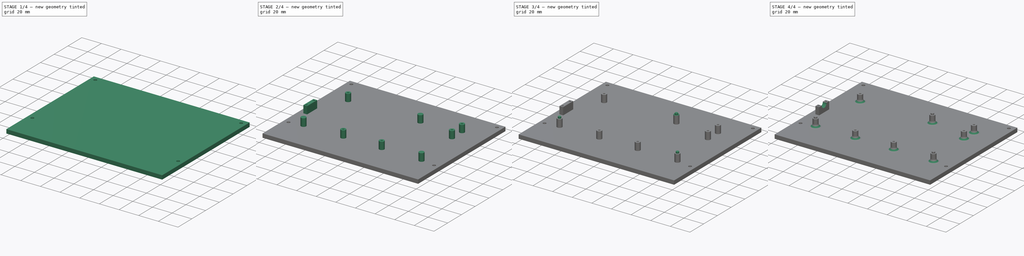
[diagram: build sequence overview — one tinted view per stage of 4, left to right]
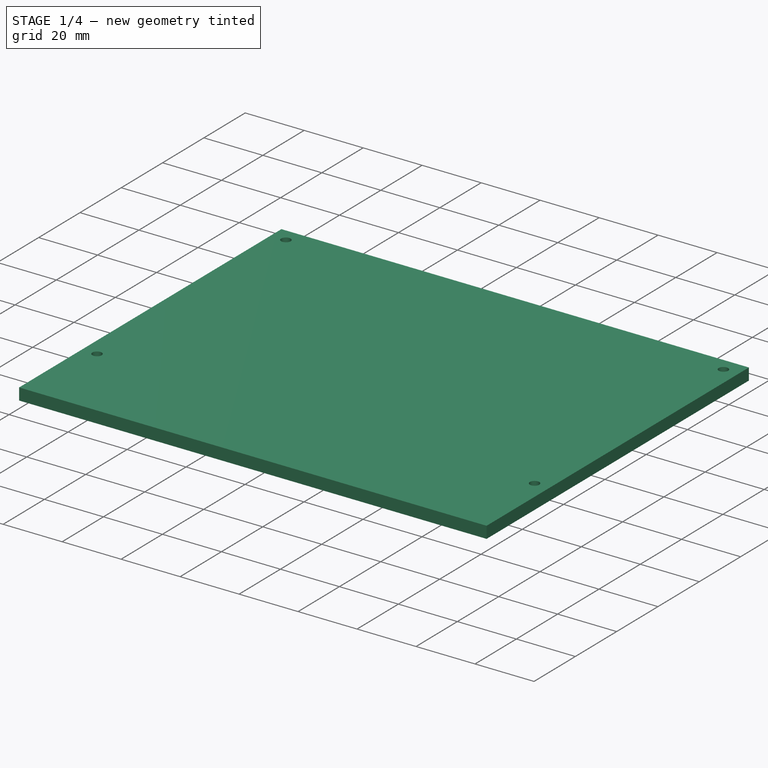
[diagram: stage 1 of 4 — iso view after this stage's code; geometry added in this stage tinted green]
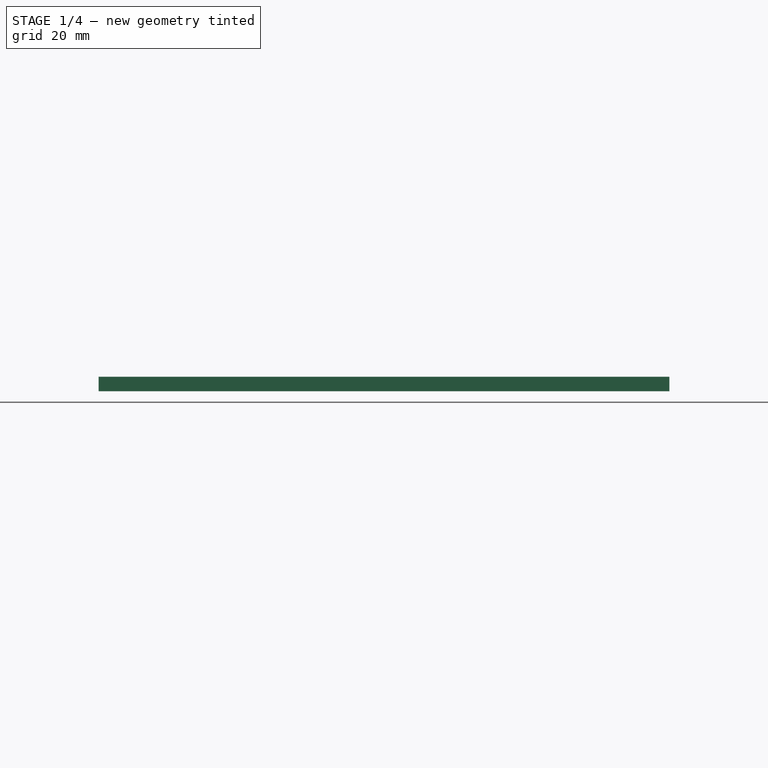
[diagram: stage 1 of 4 — front view after this stage's code; geometry added in this stage tinted green]
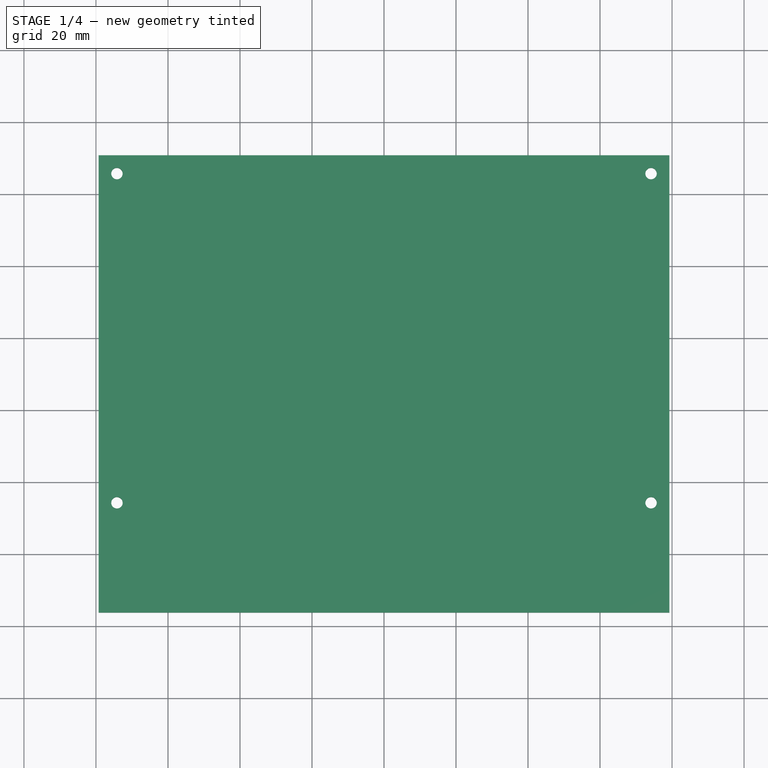
[diagram: stage 1 of 4 — top view after this stage's code; geometry added in this stage tinted green]
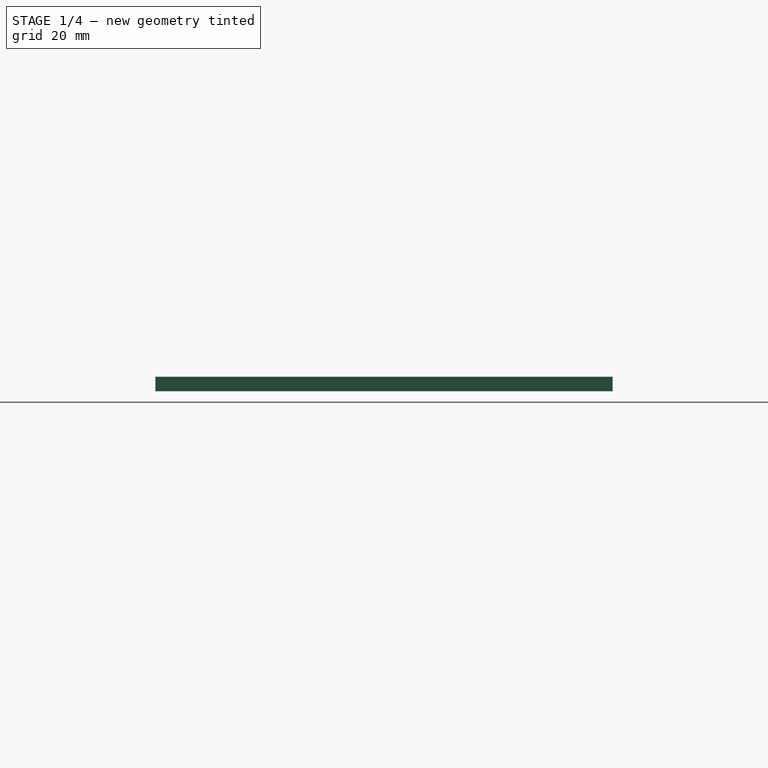
[diagram: stage 1 of 4 — right view after this stage's code; geometry added in this stage tinted green]
FCSTD DOCUMENT  (FreeCAD 1.0R39285 (Git))
Label: bottom_plate
License: All rights reserved
LicenseURL: http://en.wikipedia.org/wiki/All_rights_reserved
objects: PartDesign::Pad×7, Sketcher::SketchObject×5, PartDesign::Plane×4, PartDesign::Pocket×1, PartDesign::Fillet×1, PartDesign::Body×1, Measure::MeasureLength×1
note: 42 computed .brp shape members not serialized (recipe doc carries the construction recipe); baked Part::Feature solids carry a one-line shape summary decoded from their .brp

FEATURE [Sketcher::SketchObject] Sketch
  ArcFitTolerance = 1e-06
  AttachmentSupport = -> [XY_Plane]
  FullyConstrained = true
  MakeInternals = false
  MapMode = 5
  sketch-geometry (13):
    g0: LineSegment StartX=-79.248 StartY=50.8 StartZ=0 EndX=-79.248 EndY=-50.8 EndZ=0
    g1: LineSegment StartX=-79.248 StartY=-50.8 StartZ=0 EndX=79.248 EndY=-50.8 EndZ=0
    g2: LineSegment StartX=79.248 StartY=-50.8 StartZ=0 EndX=79.248 EndY=50.8 EndZ=0
    g3: LineSegment StartX=79.248 StartY=50.8 StartZ=0 EndX=-79.248 EndY=50.8 EndZ=0
    g4: GeomPoint [constr] X=0 Y=0 Z=0
    g5: LineSegment [constr] StartX=-79.248 StartY=50.8 StartZ=0 EndX=-74.168 EndY=45.72 EndZ=0
    g6: LineSegment [constr] StartX=-79.248 StartY=-50.8 StartZ=0 EndX=-74.168 EndY=-45.72 EndZ=0
    g7: LineSegment [constr] StartX=79.248 StartY=-50.8 StartZ=0 EndX=74.168 EndY=-45.72 EndZ=0
    g8: LineSegment [constr] StartX=79.248 StartY=50.8 StartZ=0 EndX=74.168 EndY=45.72 EndZ=0
    g9: Circle CenterX=-74.168 CenterY=45.72 CenterZ=0 NormalX=0 NormalY=0 NormalZ=1 AngleXU=0 Radius=1.5875
    g10: Circle CenterX=-74.168 CenterY=-45.72 CenterZ=0 NormalX=0 NormalY=0 NormalZ=1 AngleXU=0 Radius=1.5875
    g11: Circle CenterX=74.168 CenterY=-45.72 CenterZ=0 NormalX=0 NormalY=0 NormalZ=1 AngleXU=0 Radius=1.5875
    g12: Circle CenterX=74.168 CenterY=45.72 CenterZ=0 NormalX=0 NormalY=0 NormalZ=1 AngleXU=0 Radius=1.5875
  constraints (32):
    c: Coincident(g0,g1)
    c: Coincident(g1,g2)
    c: Coincident(g2,g3)
    c: Coincident(g3,g0)
    c: Vertical(g0)
    c: Vertical(g2)
    c: Horizontal(g1)
    c: Horizontal(g3)
    c: Symmetric(g2,g0,g4)
    c: Distance(g0,g2) = 158.496
    c: Coincident(g4,g-1)
    c: Distance(g0,g0) = 101.6
    c: DistanceX(g5,g5) = 5.08
    c: DistanceY(g5,g5) = 5.08
    c: Coincident(g5,g0)
    c: DistanceX(g6,g6) = 5.08
    c: DistanceY(g6,g6) = 5.08
    c: Coincident(g6,g0)
    c: DistanceX(g7,g7) = 5.08
    c: DistanceY(g7,g7) = 5.08
    c: Coincident(g7,g1)
    c: DistanceX(g8,g8) = 5.08
    c: DistanceY(g8,g8) = 5.08
    c: Coincident(g8,g2)
    c: Diameter(g9) = 3.175
    c: Coincident(g9,g5)
    c: Diameter(g10) = 3.175
    c: Coincident(g10,g6)
    c: Diameter(g11) = 3.175
    c: Coincident(g11,g7)
    c: Diameter(g12) = 3.175
    c: Coincident(g12,g8)
FEATURE [PartDesign::Pad] Pad
  Direction = (0,0,1)
  Length = 4.0132
  Length2 = 10
  Profile = -> Sketch
  ReferenceAxis = -> Sketch [N_Axis]
  Suppressed = false
  Type = 0
FEATURE [PartDesign::Pad] Pad001
  BaseFeature = -> Pad
  Direction = (0,-1,0)
  Length = 25.4
  Length2 = 10
  Profile = -> Pad [Face2]
  Refine = true
  Suppressed = false
  Type = 0
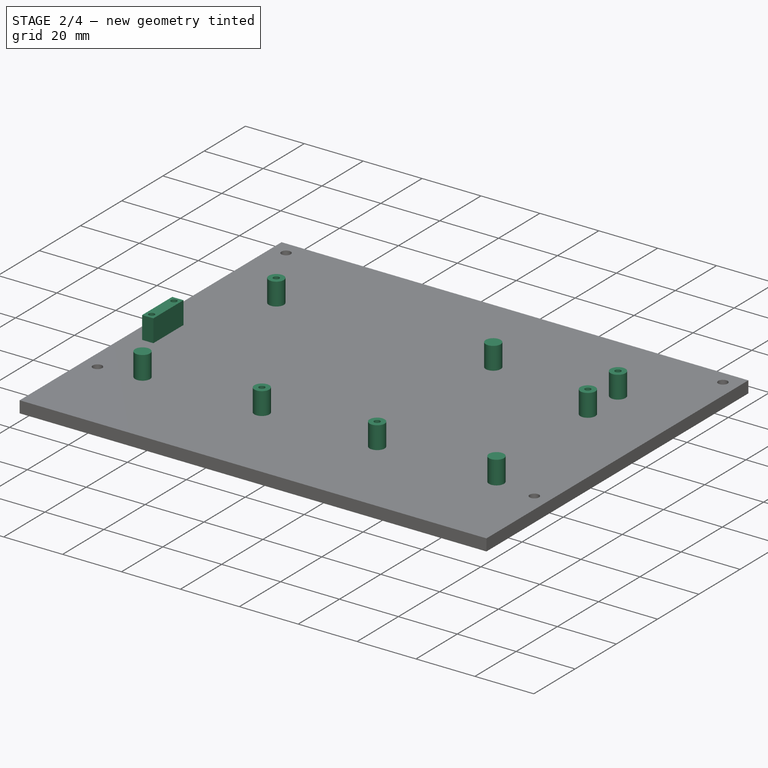
[diagram: stage 2 of 4 — iso view after this stage's code; geometry added in this stage tinted green]
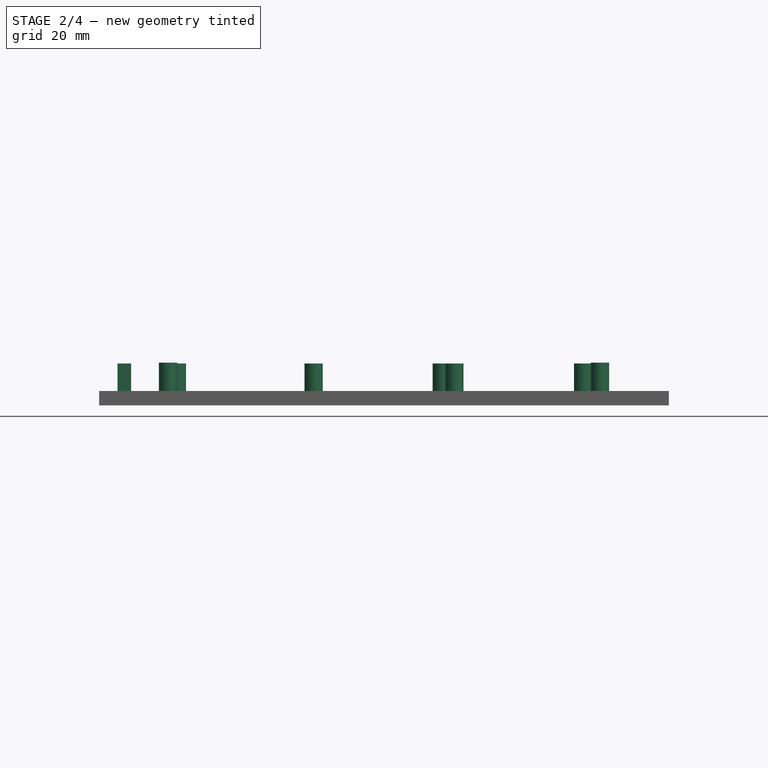
[diagram: stage 2 of 4 — front view after this stage's code; geometry added in this stage tinted green]
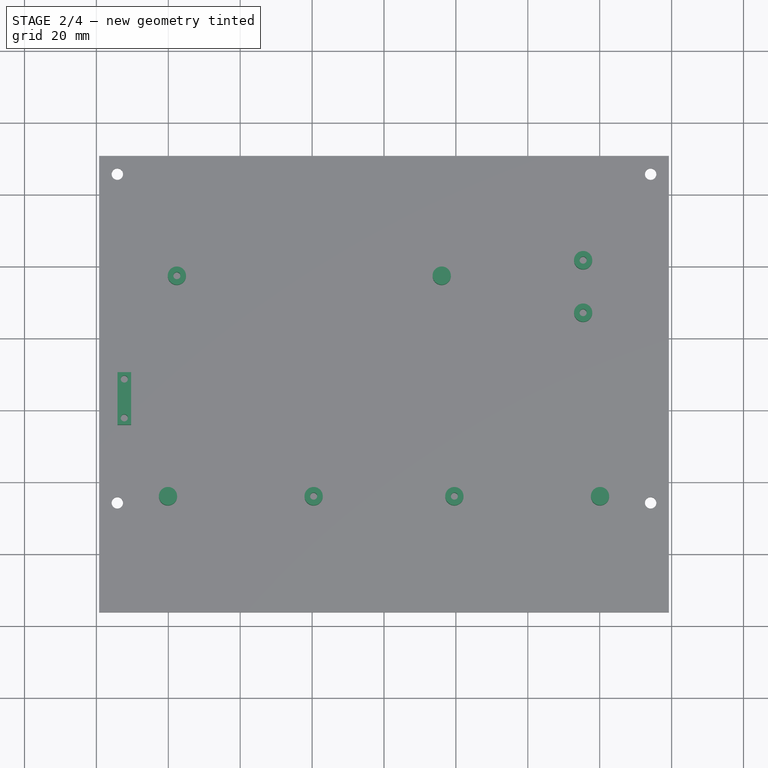
[diagram: stage 2 of 4 — top view after this stage's code; geometry added in this stage tinted green]
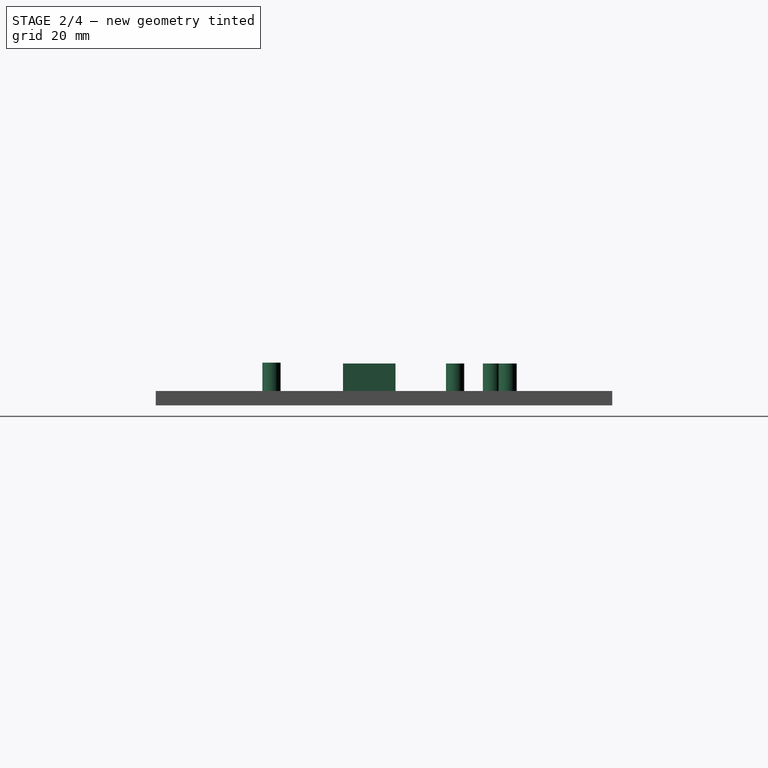
[diagram: stage 2 of 4 — right view after this stage's code; geometry added in this stage tinted green]
FEATURE [PartDesign::Plane] DatumPlane
  AttachmentSupport = -> [Pad001]
  Length = 186.871
  MapMode = 5
  Placement = pos=(0,0,4.0132) rot=(0,0,1;0rad)
  ResizeMode = 0
  Width = 155.375
FEATURE [Sketcher::SketchObject] Sketch001
  ArcFitTolerance = 1e-06
  AttachmentSupport = -> [Pad001]
  ExternalGeometry = -> [Pad001]
  FullyConstrained = false
  MakeInternals = false
  MapMode = 5
  Placement = pos=(0,0,4.0132) rot=(0,0,1;0rad)
  sketch-geometry (59):
    g0: LineSegment [constr] StartX=14.4313 StartY=-24.9319 StartZ=0 EndX=14.4313 EndY=-63.0319 EndZ=0
    g1: LineSegment [constr] StartX=14.4313 StartY=-63.0319 StartZ=0 EndX=65.2313 EndY=-63.0319 EndZ=0
    g2: LineSegment [constr] StartX=65.2313 StartY=-63.0319 StartZ=0 EndX=65.2313 EndY=-24.9319 EndZ=0
    g3: LineSegment [constr] StartX=65.2313 StartY=-24.9319 StartZ=0 EndX=14.4313 EndY=-24.9319 EndZ=0
    g4: LineSegment [constr] StartX=-65.2313 StartY=-24.9319 StartZ=0 EndX=-65.2313 EndY=-63.0319 EndZ=0
    g5: LineSegment [constr] StartX=-65.2313 StartY=-63.0319 StartZ=0 EndX=-14.4313 EndY=-63.0319 EndZ=0
    g6: LineSegment [constr] StartX=-14.4313 StartY=-63.0319 StartZ=0 EndX=-14.4313 EndY=-24.9319 EndZ=0
    g7: LineSegment [constr] StartX=-14.4313 StartY=-24.9319 StartZ=0 EndX=-65.2313 EndY=-24.9319 EndZ=0
    g8: LineSegment [constr] StartX=-14.4313 StartY=-63.0319 StartZ=0 EndX=14.4313 EndY=-63.0319 EndZ=0
    g9: LineSegment [constr] StartX=-65.2313 StartY=43.3911 StartZ=0 EndX=-65.2313 EndY=-8.67892 EndZ=0
    g10: LineSegment [constr] StartX=-65.2313 StartY=-8.67892 StartZ=0 EndX=23.6687 EndY=-8.67892 EndZ=0
    g11: LineSegment [constr] StartX=23.6687 StartY=-8.67892 StartZ=0 EndX=23.6687 EndY=43.3911 EndZ=0
    g12: LineSegment [constr] StartX=23.6687 StartY=43.3911 StartZ=0 EndX=-65.2313 EndY=43.3911 EndZ=0
    g13: LineSegment [constr] StartX=45.5463 StartY=-8.67892 StartZ=0 EndX=65.2313 EndY=-8.67892 EndZ=0
    g14: LineSegment [constr] StartX=65.2313 StartY=-8.67892 StartZ=0 EndX=65.2313 EndY=37.4221 EndZ=0
    g15: LineSegment [constr] StartX=65.2313 StartY=37.4221 StartZ=0 EndX=45.5463 EndY=37.4221 EndZ=0
    g16: LineSegment [constr] StartX=45.5463 StartY=37.4221 StartZ=0 EndX=45.5463 EndY=-8.67892 EndZ=0
    g17: LineSegment [constr] StartX=-65.2313 StartY=-63.0319 StartZ=0 EndX=-79.248 EndY=-63.0319 EndZ=0
    g18: LineSegment [constr] StartX=65.2313 StartY=-63.0319 StartZ=0 EndX=79.248 EndY=-63.0319 EndZ=0
    g19: LineSegment [constr] StartX=-65.2313 StartY=-8.67892 StartZ=0 EndX=65.2313 EndY=-8.67892 EndZ=0
    g20: LineSegment [constr] StartX=19.5748 StartY=-43.9819 StartZ=0 EndX=60.0878 EndY=-43.9819 EndZ=0
    g21: LineSegment [constr] StartX=60.0878 StartY=-43.9819 StartZ=0 EndX=60.0878 EndY=-63.0319 EndZ=0
    g22: LineSegment [constr] StartX=60.0878 StartY=-43.9819 StartZ=0 EndX=60.0878 EndY=-24.9319 EndZ=0
    g23: LineSegment [constr] StartX=60.0878 StartY=-43.9819 StartZ=0 EndX=65.2313 EndY=-43.9819 EndZ=0
    g24: LineSegment [constr] StartX=19.5748 StartY=-43.9819 StartZ=0 EndX=14.4313 EndY=-43.9819 EndZ=0
    g25: LineSegment [constr] StartX=-65.2313 StartY=-43.9819 StartZ=0 EndX=-60.0878 EndY=-43.9819 EndZ=0
    g26: LineSegment [constr] StartX=-14.4313 StartY=-43.9819 StartZ=0 EndX=-19.5748 EndY=-43.9819 EndZ=0
    g27: LineSegment [constr] StartX=-60.0878 StartY=-43.9819 StartZ=0 EndX=-19.5748 EndY=-43.9819 EndZ=0
    g28: LineSegment [constr] StartX=-65.2313 StartY=17.3561 StartZ=0 EndX=-57.6113 EndY=17.3561 EndZ=0
    g29: LineSegment [constr] StartX=23.6687 StartY=17.3561 StartZ=0 EndX=16.0487 EndY=17.3561 EndZ=0
    g30: LineSegment [constr] StartX=-57.6113 StartY=17.3561 StartZ=0 EndX=16.0487 EndY=17.3561 EndZ=0
    g31: LineSegment [constr] StartX=55.3888 StartY=-8.67892 StartZ=0 EndX=55.3888 EndY=7.06908 EndZ=0
    g32: LineSegment [constr] StartX=55.3888 StartY=37.4221 StartZ=0 EndX=55.3888 EndY=21.6741 EndZ=0
    g33: LineSegment [constr] StartX=55.3888 StartY=7.06908 StartZ=0 EndX=55.3888 EndY=21.6741 EndZ=0
    g34: Circle CenterX=-60.0878 CenterY=-43.9819 CenterZ=0 NormalX=0 NormalY=0 NormalZ=1 AngleXU=0 Radius=2.54
    g35: Circle CenterX=-19.5748 CenterY=-43.9819 CenterZ=0 NormalX=0 NormalY=0 NormalZ=1 AngleXU=0 Radius=2.54
    g36: Circle CenterX=19.5748 CenterY=-43.9819 CenterZ=0 NormalX=0 NormalY=0 NormalZ=1 AngleXU=0 Radius=2.54
    g37: Circle CenterX=60.0878 CenterY=-43.9819 CenterZ=0 NormalX=0 NormalY=0 NormalZ=1 AngleXU=0 Radius=2.54
    g38: Circle CenterX=16.0487 CenterY=17.3561 CenterZ=0 NormalX=0 NormalY=0 NormalZ=1 AngleXU=0 Radius=2.54
    g39: Circle CenterX=55.3888 CenterY=7.06908 CenterZ=0 NormalX=0 NormalY=0 NormalZ=1 AngleXU=0 Radius=2.54
    g40: Circle CenterX=55.3888 CenterY=21.6741 CenterZ=0 NormalX=0 NormalY=0 NormalZ=1 AngleXU=0 Radius=2.54
    g41: Circle CenterX=-57.6113 CenterY=17.3561 CenterZ=0 NormalX=0 NormalY=0 NormalZ=1 AngleXU=0 Radius=2.54
    g42: LineSegment [constr] StartX=65.2313 StartY=-24.9319 StartZ=0 EndX=65.2313 EndY=-8.67892 EndZ=0
    g43: LineSegment [constr] StartX=-65.2313 StartY=-8.67892 StartZ=0 EndX=-65.2313 EndY=-24.9319 EndZ=0
    g44: Circle CenterX=-57.6113 CenterY=17.3561 CenterZ=0 NormalX=0 NormalY=0 NormalZ=1 AngleXU=0 Radius=0.992188
    g45: Circle CenterX=-19.5748 CenterY=-43.9819 CenterZ=0 NormalX=0 NormalY=0 NormalZ=1 AngleXU=0 Radius=0.992188
    g46: Circle CenterX=19.5748 CenterY=-43.9819 CenterZ=0 NormalX=0 NormalY=0 NormalZ=1 AngleXU=0 Radius=0.992188
    g47: Circle CenterX=55.3888 CenterY=7.06908 CenterZ=0 NormalX=0 NormalY=0 NormalZ=1 AngleXU=0 Radius=0.992188
    g48: Circle CenterX=55.3888 CenterY=21.6741 CenterZ=0 NormalX=0 NormalY=0 NormalZ=1 AngleXU=0 Radius=0.992188
    g49: LineSegment [constr] StartX=-65.2313 StartY=-16.8054 StartZ=0 EndX=-79.248 EndY=-16.8054 EndZ=0
    g50: LineSegment StartX=-74.1447 StartY=-24.1079 StartZ=0 EndX=-70.3347 EndY=-24.1079 EndZ=0
    g51: LineSegment StartX=-70.3347 StartY=-24.1079 StartZ=0 EndX=-70.3347 EndY=-9.5029 EndZ=0
    g52: LineSegment StartX=-70.3347 StartY=-9.5029 StartZ=0 EndX=-74.1447 EndY=-9.5029 EndZ=0
    g53: LineSegment StartX=-74.1447 StartY=-9.5029 StartZ=0 EndX=-74.1447 EndY=-24.1079 EndZ=0
    g54: GeomPoint [constr] X=-72.2397 Y=-16.8054 Z=0
    g55: LineSegment [constr] StartX=-72.2397 StartY=-24.1079 StartZ=0 EndX=-72.2397 EndY=-22.2029 EndZ=0
    g56: LineSegment [constr] StartX=-72.2397 StartY=-9.5029 StartZ=0 EndX=-72.2397 EndY=-11.4079 EndZ=0
    g57: Circle CenterX=-72.2397 CenterY=-11.4079 CenterZ=0 NormalX=0 NormalY=0 NormalZ=1 AngleXU=0 Radius=0.992188
    g58: Circle CenterX=-72.2397 CenterY=-22.2029 CenterZ=0 NormalX=0 NormalY=0 NormalZ=1 AngleXU=0 Radius=0.992188
  constraints (148):
    c: Coincident(g0,g1)
    c: Coincident(g1,g2)
    c: Coincident(g2,g3)
    c: Coincident(g3,g0)
    c: Vertical(g0)
    c: Vertical(g2)
    c: Horizontal(g1)
    c: Horizontal(g3)
    c: Coincident(g4,g5)
    c: Coincident(g5,g6)
    c: Coincident(g6,g7)
    c: Coincident(g7,g4)
    c: Vertical(g4)
    c: Vertical(g6)
    c: Horizontal(g5)
    c: Horizontal(g7)
    c: Distance(g4,g6) = 50.8
    c: Distance(g5,g7) = 38.1
    c: Coincident(g8,g5)
    c: Coincident(g8,g0)
    c: Horizontal(g8)
    c: Coincident(g9,g10)
    c: Coincident(g10,g11)
    c: Coincident(g11,g12)
    c: Coincident(g12,g9)
    c: Vertical(g9)
    c: Vertical(g11)
    c: Horizontal(g10)
    c: Horizontal(g12)
    c: Distance(g9,g11) = 88.9
    c: Distance(g10,g12) = 52.07
    c: Coincident(g13,g14)
    c: Coincident(g14,g15)
    c: Coincident(g15,g16)
    c: Coincident(g16,g13)
    c: Horizontal(g13)
    c: Horizontal(g15)
    c: Vertical(g14)
    c: Vertical(g16)
    c: Distance(g14,g16) = 19.685
    c: Distance(g13,g15) = 46.101
    c: Coincident(g17,g4)
    c: PointOnObject(g17,g-4)
    c: Horizontal(g17)
    c: Coincident(g18,g1)
    c: PointOnObject(g18,g-6)
    c: Horizontal(g18)
    c: Equal(g18,g17)
    c: Coincident(g19,g9)
    c: Coincident(g19,g13)
    c: Horizontal(g19)
    c: Distance(g20) = 40.513
    c: Horizontal(g20)
    c: Coincident(g21,g20)
    c: PointOnObject(g21,g1)
    c: Vertical(g21)
    c: Coincident(g22,g20)
    c: PointOnObject(g22,g3)
    c: Vertical(g22)
    c: Coincident(g23,g20)
    c: Symmetric(g2,g2,g23)
    c: Coincident(g24,g20)
    c: Symmetric(g0,g0,g24)
    c: Equal(g22,g21)
    c: Equal(g23,g24)
    c: Symmetric(g4,g4,g25)
    c: Horizontal(g25)
    c: Symmetric(g6,g6,g26)
    c: Horizontal(g26)
    c: Coincident(g27,g25)
    c: Coincident(g27,g26)
    c: DistanceX(g27,g27) = 40.513
    c: Equal(g26,g25)
    c: Symmetric(g9,g9,g28)
    c: Horizontal(g28)
    c: Symmetric(g11,g11,g29)
    c: Horizontal(g29)
    c: Coincident(g30,g28)
    c: Coincident(g30,g29)
    c: DistanceX(g30,g30) = 73.66
    c: Equal(g29,g28)
    c: Symmetric(g13,g13,g31)
    c: Vertical(g31)
    c: Symmetric(g15,g15,g32)
    c: Vertical(g32)
    c: Coincident(g33,g31)
    c: Coincident(g33,g32)
    c: DistanceY(g33,g33) = 14.605
    c: Equal(g32,g31)
    c: Diameter(g34) = 5.08
    c: Coincident(g34,g25)
    c: Diameter(g35) = 5.08
    c: Coincident(g35,g26)
    c: Diameter(g36) = 5.08
    c: Coincident(g36,g20)
    c: Diameter(g37) = 5.08
    c: Coincident(g37,g20)
    c: Diameter(g38) = 5.08
    c: Coincident(g38,g29)
    c: Diameter(g39) = 5.08
    c: Coincident(g39,g31)
    c: Diameter(g40) = 5.08
    c: Coincident(g40,g32)
    c: Equal(g7,g3)
    c: Equal(g4,g0)
    c: Diameter(g41) = 5.08
    c: Coincident(g41,g28)
    c: Coincident(g42,g2)
    c: Coincident(g42,g13)
    c: Coincident(g43,g9)
    c: Coincident(g43,g4)
    c: Vertical(g43)
    c: Vertical(g42)
    c: Diameter(g44) = 1.98438
    c: Coincident(g44,g28)
    c: Coincident(g45,g26)
    c: Coincident(g46,g20)
    c: Coincident(g47,g31)
    c: Coincident(g48,g32)
    c: Equal(g44,g45)
    c: Equal(g46,g44)
    c: Equal(g44,g47)
    c: Equal(g47,g48)
    c: Symmetric(g43,g43,g49)
    c: PointOnObject(g49,g-4)
    c: Horizontal(g49)
    c: Coincident(g50,g51)
    c: Coincident(g51,g52)
    c: Coincident(g52,g53)
    c: Coincident(g53,g50)
    c: Horizontal(g50)
    c: Horizontal(g52)
    c: Vertical(g51)
    c: Vertical(g53)
    c: Symmetric(g52,g50,g54)
    c: Distance(g51,g53) = 3.81
    c: Distance(g50,g52) = 14.605
    c: Symmetric(g49,g49,g54)
    c: Distance(g55) = 1.905
    c: Symmetric(g50,g50,g55)
    c: Vertical(g55)
    c: Distance(g56) = 1.905
    c: Symmetric(g52,g52,g56)
    c: Vertical(g56)
    c: Diameter(g57) = 1.98438
    c: Coincident(g57,g56)
    c: Coincident(g58,g55)
    c: Equal(g57,g58)
FEATURE [PartDesign::Pad] Pad002
  BaseFeature = -> Pad001
  Direction = (0,0,1)
  Length = 7.62
  Length2 = 10
  Profile = -> Sketch001
  ReferenceAxis = -> Sketch001 [N_Axis]
  Refine = true
  Suppressed = false
  Type = 0
FEATURE [PartDesign::Pad] Pad003
  BaseFeature = -> Pad002
  Direction = (0,0,1)
  Length = 0.254
  Length2 = 10
  Profile = -> Pad002 [Face23,Face27]
  Refine = true
  Suppressed = false
  Type = 0
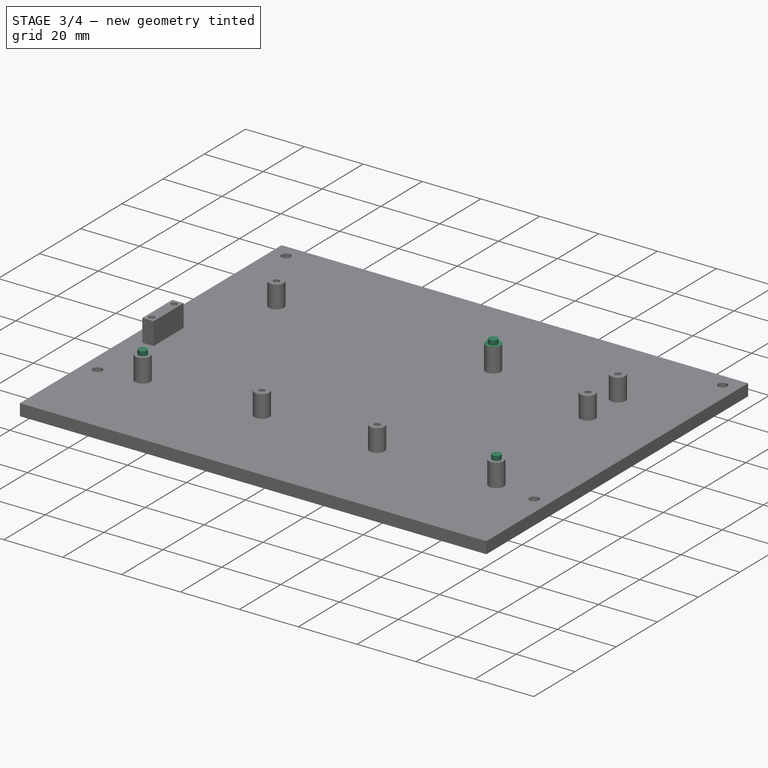
[diagram: stage 3 of 4 — iso view after this stage's code; geometry added in this stage tinted green]
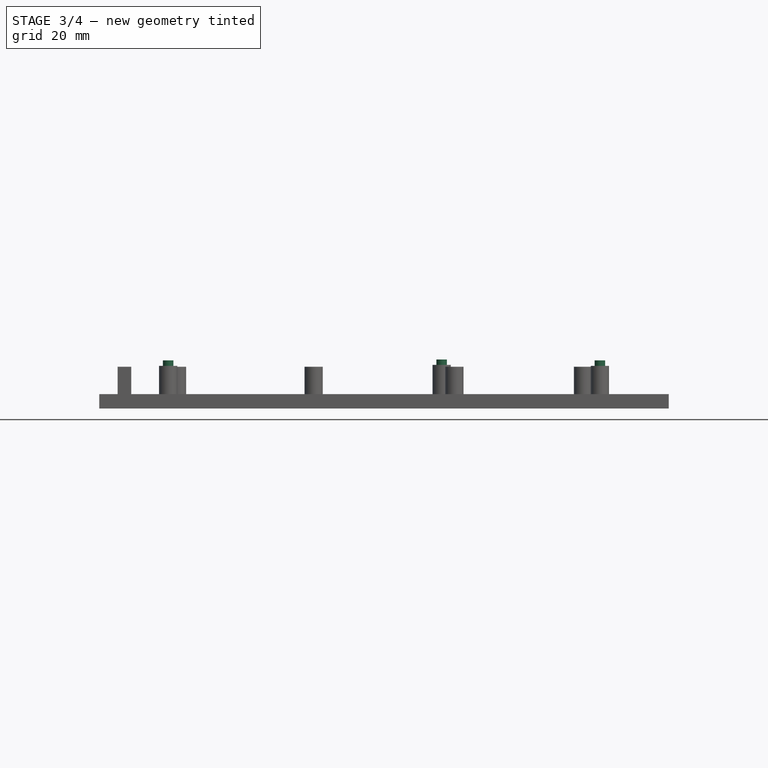
[diagram: stage 3 of 4 — front view after this stage's code; geometry added in this stage tinted green]
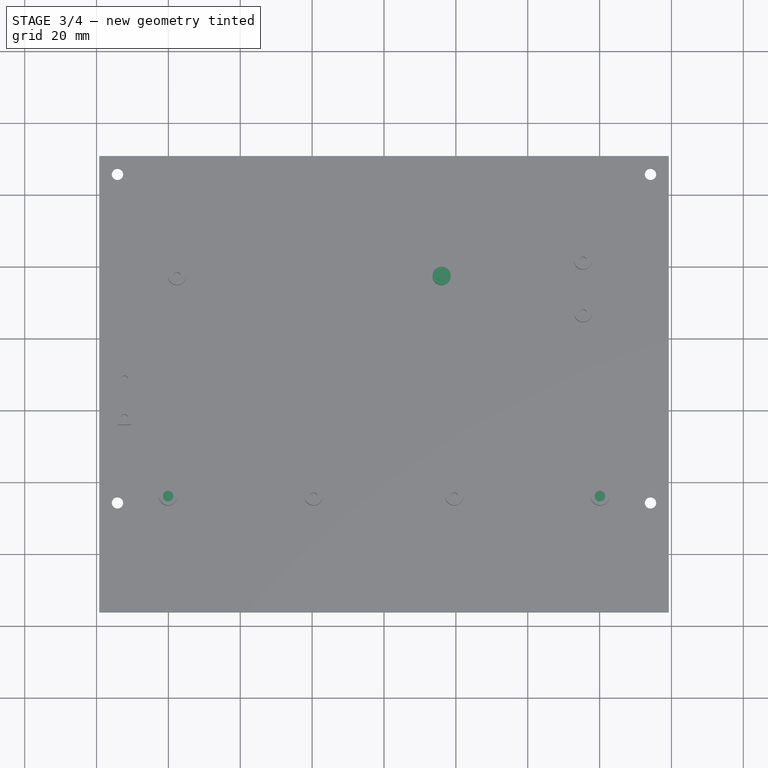
[diagram: stage 3 of 4 — top view after this stage's code; geometry added in this stage tinted green]
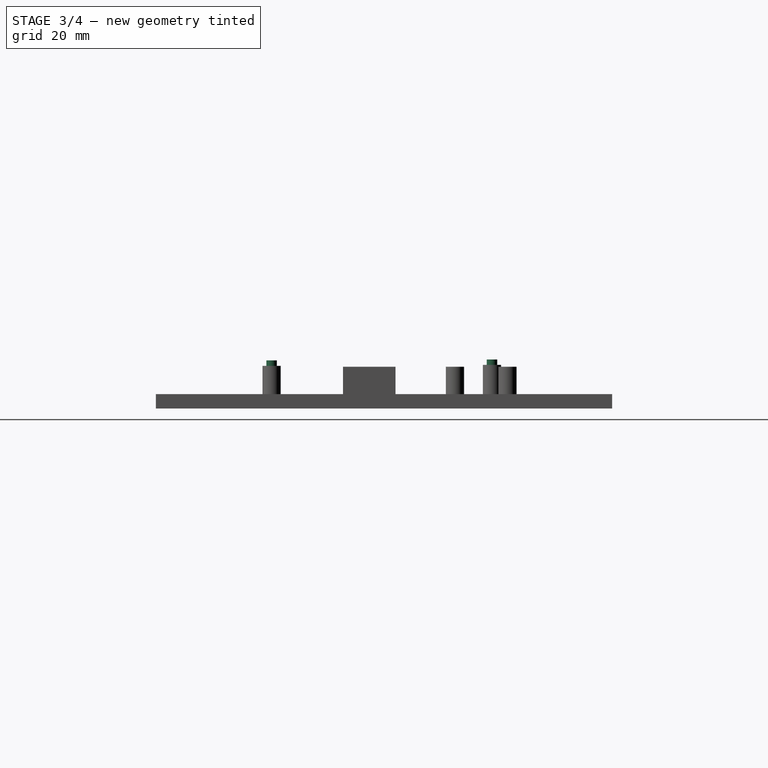
[diagram: stage 3 of 4 — right view after this stage's code; geometry added in this stage tinted green]
FEATURE [PartDesign::Pad] Pad004
  BaseFeature = -> Pad003
  Direction = (0,0,1)
  Length = 0.508
  Length2 = 10
  Profile = -> Pad003 [Face25]
  Refine = true
  Suppressed = false
  Type = 0
FEATURE [PartDesign::Plane] DatumPlane001
  AttachmentSupport = -> [Pad004]
  Length = 186.871
  MapMode = 5
  Placement = pos=(0,0,11.8872) rot=(0,0,1;0rad)
  ResizeMode = 0
  Width = 155.375
FEATURE [Sketcher::SketchObject] Sketch002
  ArcFitTolerance = 1e-06
  AttachmentSupport = -> [Pad004]
  ExternalGeometry = -> [Pad004]
  FullyConstrained = true
  MakeInternals = false
  MapMode = 5
  Placement = pos=(0,0,11.8872) rot=(0,0,1;0rad)
  sketch-geometry (2):
    g0: Circle CenterX=60.0878 CenterY=-43.9819 CenterZ=0 NormalX=0 NormalY=0 NormalZ=1 AngleXU=0 Radius=1.4605
    g1: Circle CenterX=-60.0878 CenterY=-43.9819 CenterZ=0 NormalX=0 NormalY=0 NormalZ=1 AngleXU=0 Radius=1.4605
  constraints (4):
    c: Diameter(g0) = 2.921
    c: Coincident(g0,g-4)
    c: Diameter(g1) = 2.921
    c: Coincident(g1,g-3)
FEATURE [PartDesign::Pad] Pad005
  BaseFeature = -> Pad004
  Direction = (0,0,1)
  Length = 1.524
  Length2 = 10
  Profile = -> Sketch002
  ReferenceAxis = -> Sketch002 [N_Axis]
  Refine = true
  Suppressed = false
  Type = 0
FEATURE [PartDesign::Plane] DatumPlane002
  AttachmentSupport = -> [Pad005]
  Length = 155.375
  MapMode = 11
  Placement = pos=(16.0487,17.3561,12.1412) rot=(0,0,1;1.5708rad)
  ResizeMode = 0
  Width = 186.871
FEATURE [Sketcher::SketchObject] Sketch003
  ArcFitTolerance = 1e-06
  AttachmentSupport = -> [DatumPlane002]
  ExternalGeometry = -> [Pad005]
  FullyConstrained = true
  MakeInternals = false
  MapMode = 5
  Placement = pos=(16.0487,17.3561,12.1412) rot=(0,0,1;1.5708rad)
  sketch-geometry (1):
    g0: Circle CenterX=0 CenterY=0 CenterZ=0 NormalX=0 NormalY=0 NormalZ=1 AngleXU=0 Radius=1.4605
  constraints (2):
    c: Diameter(g0) = 2.921
    c: Coincident(g0,g-1)
FEATURE [PartDesign::Pad] Pad006
  BaseFeature = -> Pad005
  Direction = (0,0,1)
  Length = 1.524
  Length2 = 10
  Profile = -> Sketch003
  ReferenceAxis = -> Sketch003 [N_Axis]
  Refine = true
  Suppressed = false
  Type = 0
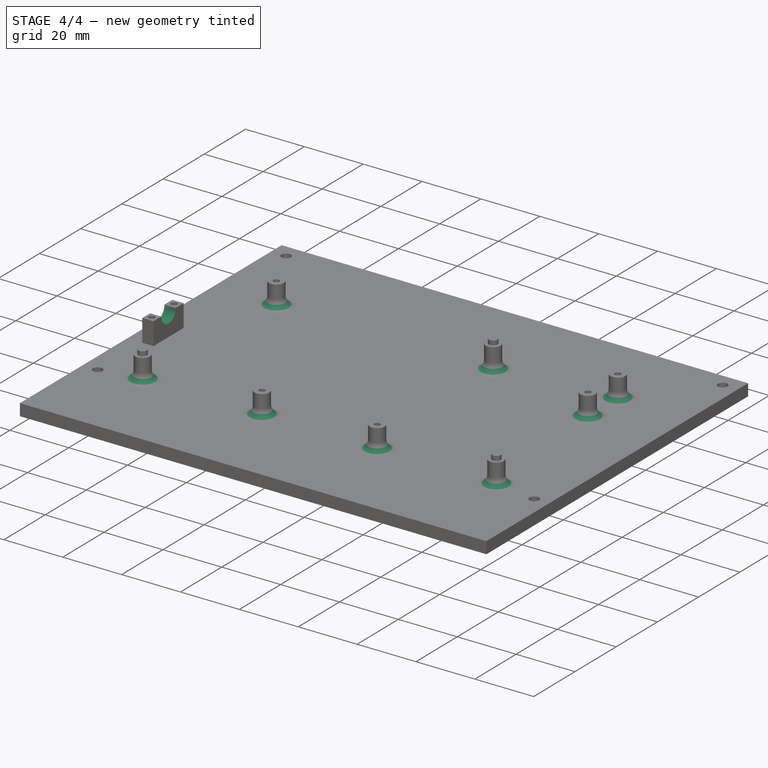
[diagram: stage 4 of 4 — iso view after this stage's code; geometry added in this stage tinted green]
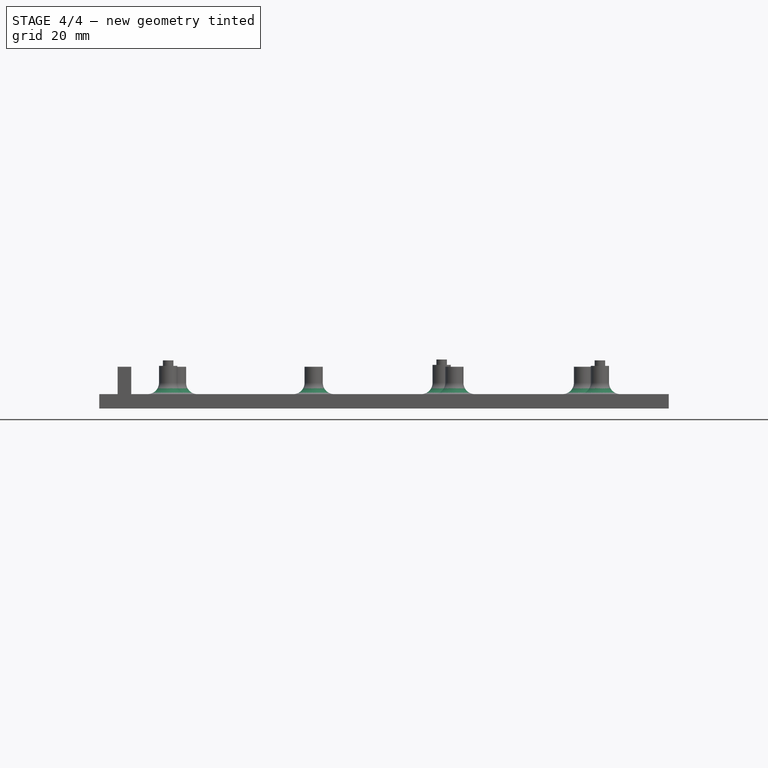
[diagram: stage 4 of 4 — front view after this stage's code; geometry added in this stage tinted green]
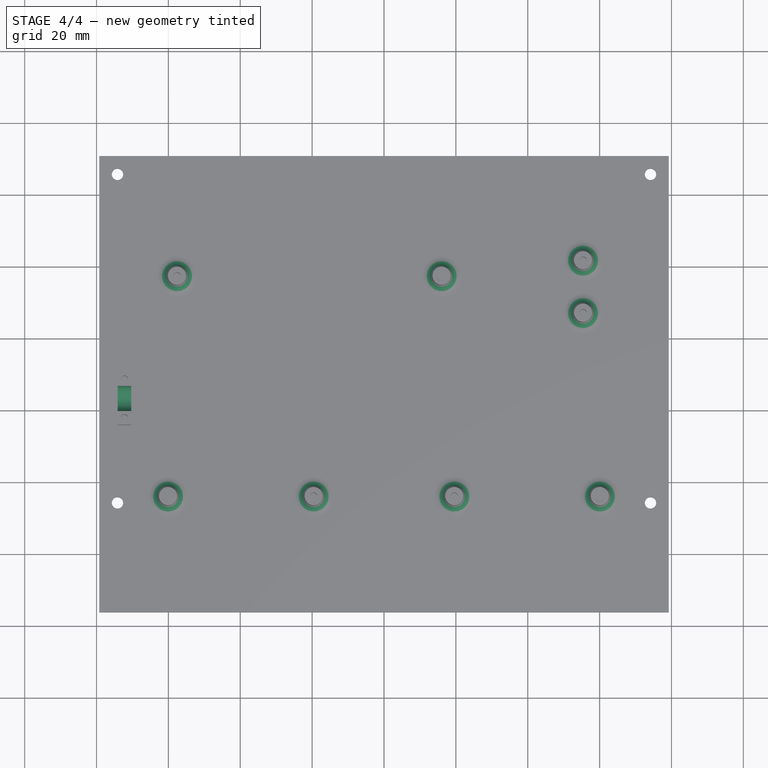
[diagram: stage 4 of 4 — top view after this stage's code; geometry added in this stage tinted green]
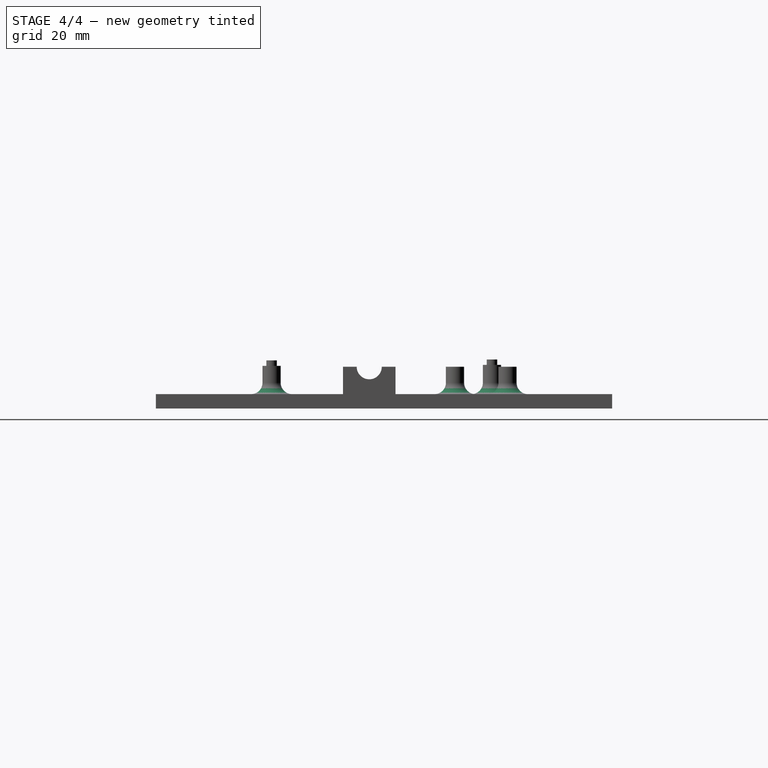
[diagram: stage 4 of 4 — right view after this stage's code; geometry added in this stage tinted green]
FEATURE [PartDesign::Plane] DatumPlane003
  AttachmentSupport = -> [Pad003]
  Length = 142.937
  MapMode = 5
  Placement = pos=(-74.1447,0,0) rot=(0.57735,-0.57735,-0.57735;2.0944rad)
  ResizeMode = 0
  Width = 65.9374
FEATURE [Sketcher::SketchObject] Sketch004
  ArcFitTolerance = 1e-06
  AttachmentSupport = -> [Pad003]
  ExternalGeometry = -> [Pad003]
  FullyConstrained = true
  MakeInternals = false
  MapMode = 5
  Placement = pos=(-74.1447,0,0) rot=(0.57735,-0.57735,-0.57735;2.0944rad)
  sketch-geometry (1):
    g0: Circle CenterX=16.8054 CenterY=11.6332 CenterZ=0 NormalX=0 NormalY=0 NormalZ=1 AngleXU=0 Radius=3.4925
  constraints (2):
    c: Diameter(g0) = 6.985
    c: Symmetric(g-3,g-3,g0)
FEATURE [PartDesign::Pocket] Pocket
  BaseFeature = -> Pad006
  Direction = (1,0,0)
  Length = 5
  Length2 = 5
  Profile = -> Sketch004
  ReferenceAxis = -> Sketch004 [N_Axis]
  Refine = true
  Suppressed = false
  Type = 1
FEATURE [PartDesign::Fillet] Fillet
  Base = -> Pocket [Edge18,Edge19,Edge29,Edge27,Edge24,Edge31,Edge30,Edge25]
  BaseFeature = -> Pocket
  Radius = 3.175
  Refine = true
  SupportTransform = false
  Suppressed = false
  UseAllEdges = false
FEATURE [PartDesign::Body] Body
  AllowCompound = false
  Group = -> [Sketch,Pad,Pad001,DatumPlane,Sketch001,Pad002,Pad003,Pad004,DatumPlane001,Sketch002,Pad005,DatumPlane002,Sketch003,Pad006,DatumPlane003,Sketch004,Pocket,Fillet]
  Origin = -> Origin
  Tip = -> Fillet
FEATURE [Measure::MeasureLength] Length  label="Length: 0.1580 ""
  Elements = -> [Body]
  Length = 4.0132
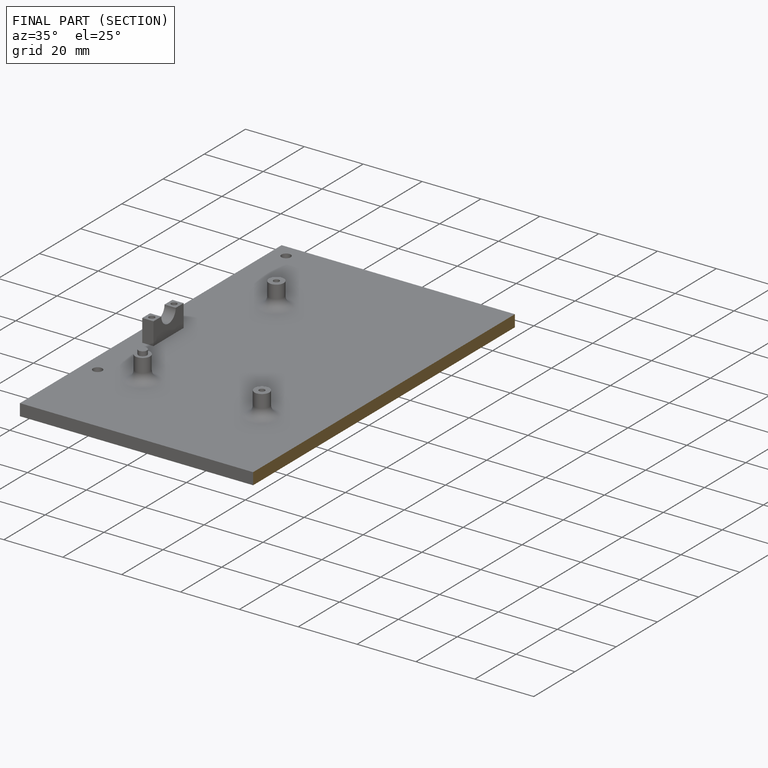
[diagram: finished part — half-section view (interior)]
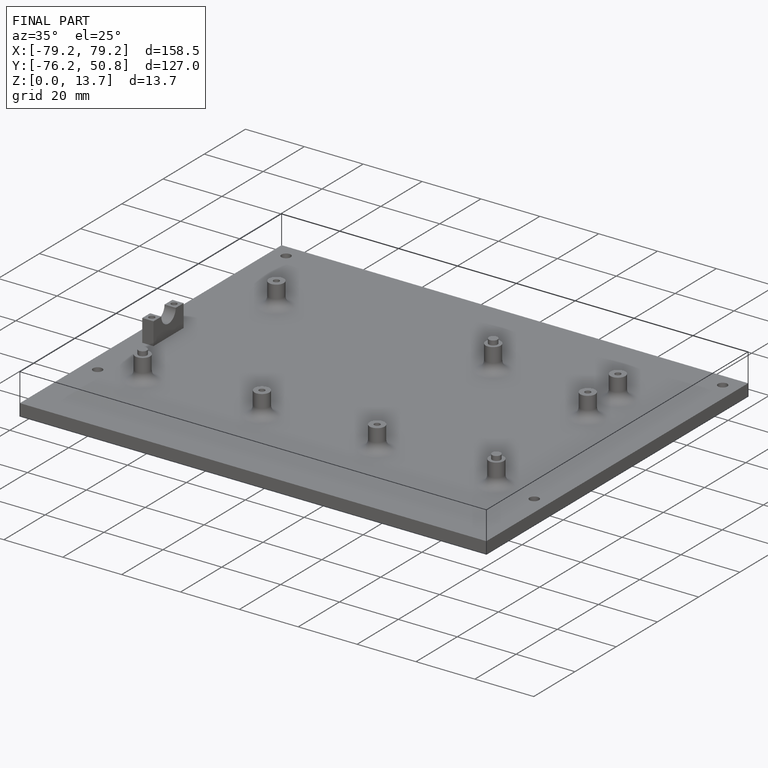
[diagram: finished part — iso view with bounding-box wireframe]
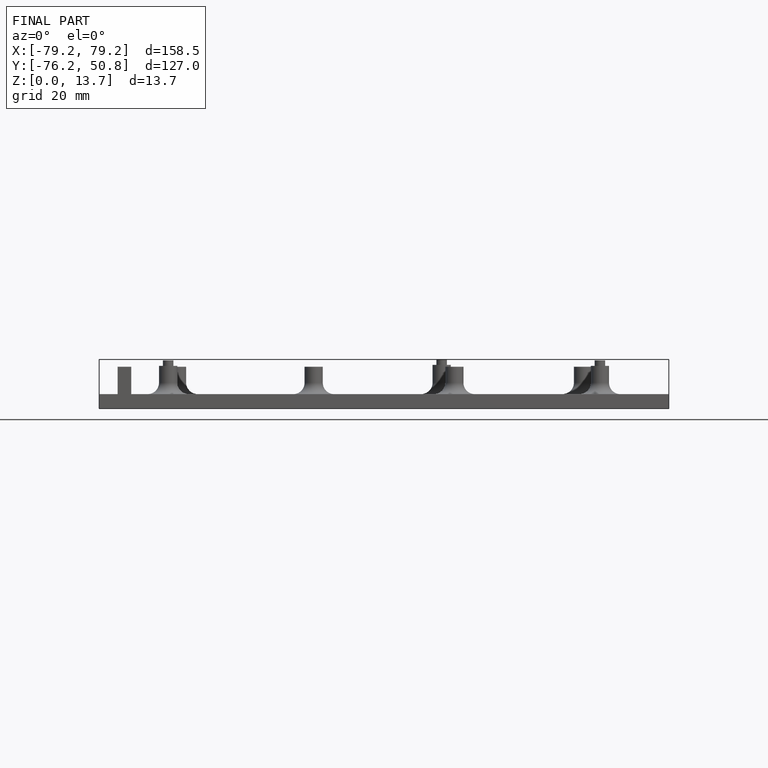
[diagram: finished part — front view with bounding-box wireframe]
